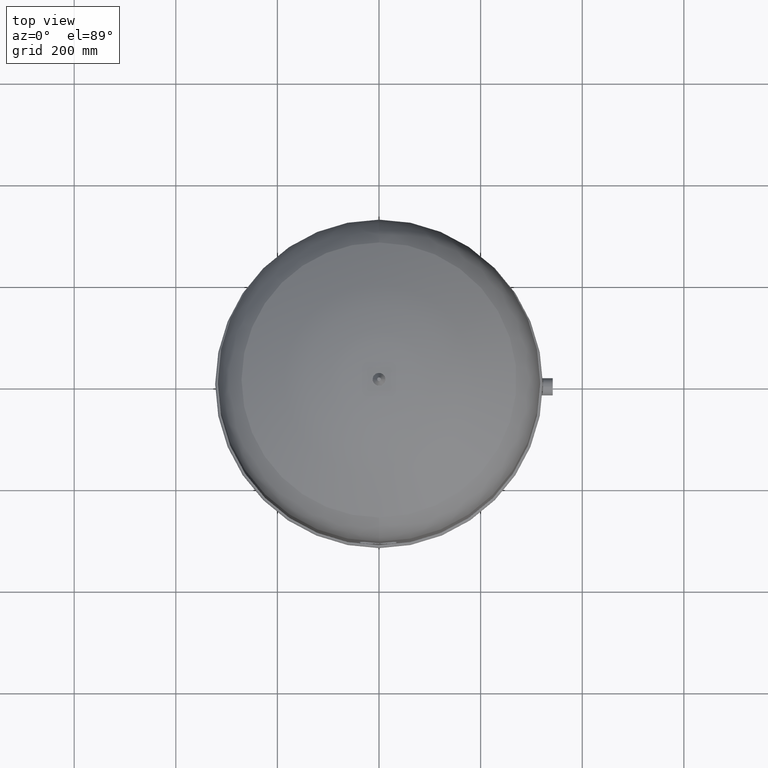
[diagram: clean part render]
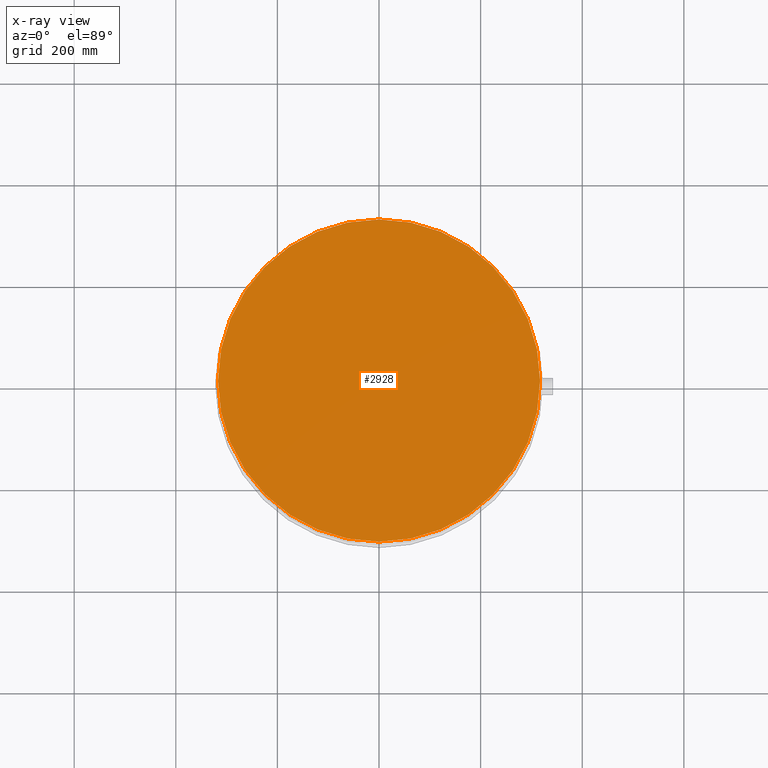
[diagram: x-ray — body ghosted, one internal face saturated and labeled with its STEP entity id]
A machine part, top view, then the same camera in x-ray: the body is ghosted and one INTERNAL B-rep face — a face not visible from any outside direction — is saturated and labeled: STEP entity #2928.
In plain terms, the highlighted face is a freeform B-spline surface patch.
Its self-contained STEP definition (entity closure, byte-faithful):
#2637=CARTESIAN_POINT('',(-317.0,-2.975892E-014,923.000000000000110));
#2638=VERTEX_POINT('',#2637);
#2647=CARTESIAN_POINT('',(317.0,9.061104E-015,923.000000000000110));
#2648=VERTEX_POINT('',#2647);
#2649=CARTESIAN_POINT('',(-1.558411E-014,-2.975892E-014,923.000000000000110));
#2650=DIRECTION('',(0.0,0.0,1.0));
#2651=DIRECTION('',(-1.0,0.0,0.0));
#2652=AXIS2_PLACEMENT_3D('',#2649,#2650,#2651);
#2653=CIRCLE('',#2652,317.0);
#2654=EDGE_CURVE('',#2638,#2648,#2653,.T.);
#2909=CARTESIAN_POINT('',(-1.558411E-014,-2.975892E-014,923.000000000000110));
#2910=DIRECTION('',(0.0,0.0,1.0));
#2911=DIRECTION('',(-1.0,0.0,0.0));
#2912=AXIS2_PLACEMENT_3D('',#2909,#2910,#2911);
#2913=CIRCLE('',#2912,317.0);
#2914=EDGE_CURVE('',#2648,#2638,#2913,.T.);
#2919=CARTESIAN_POINT('',(317.0,316.999999999999940,922.999999999999890));
#2920=CARTESIAN_POINT('',(317.0,-317.000000000000060,923.0));
#2921=CARTESIAN_POINT('',(-317.0,316.999999999999940,923.0));
#2922=CARTESIAN_POINT('',(-317.0,-317.000000000000060,923.000000000000110));
#2923=B_SPLINE_SURFACE_WITH_KNOTS('',1,1,((#2919,#2921),(#2920,#2922)),.UNSPECIFIED.,.F.,.F.,.U.,(2,2),(2,2),(0.0,634.0),(0.0,634.0),.UNSPECIFIED.);
#2924=ORIENTED_EDGE('',*,*,#2654,.F.);
#2925=ORIENTED_EDGE('',*,*,#2914,.F.);
#2926=EDGE_LOOP('',(#2924,#2925));
#2927=FACE_OUTER_BOUND('',#2926,.T.);
#2928=ADVANCED_FACE('',(#2927),#2923,.T.);